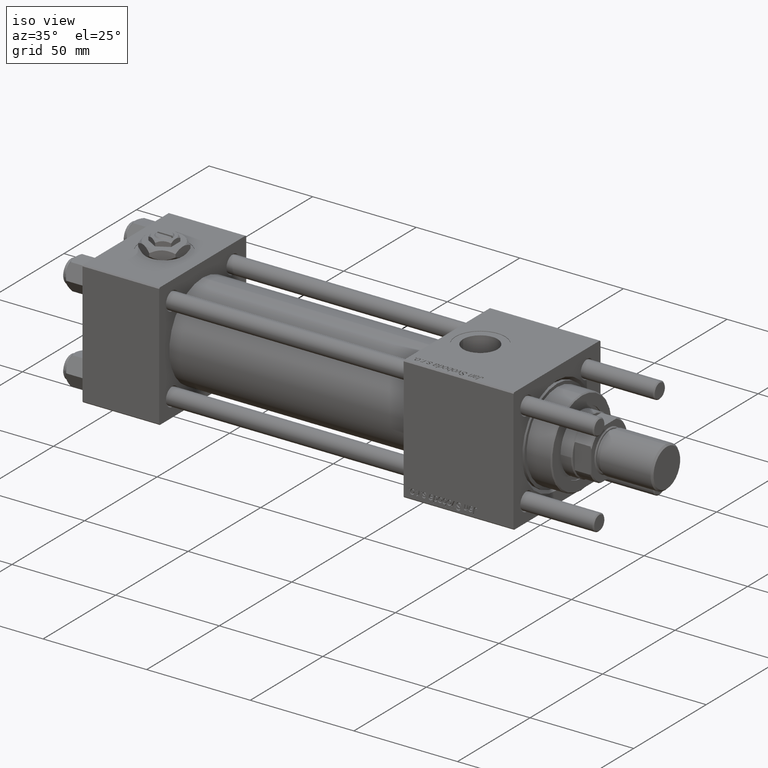
[diagram: clean part render]
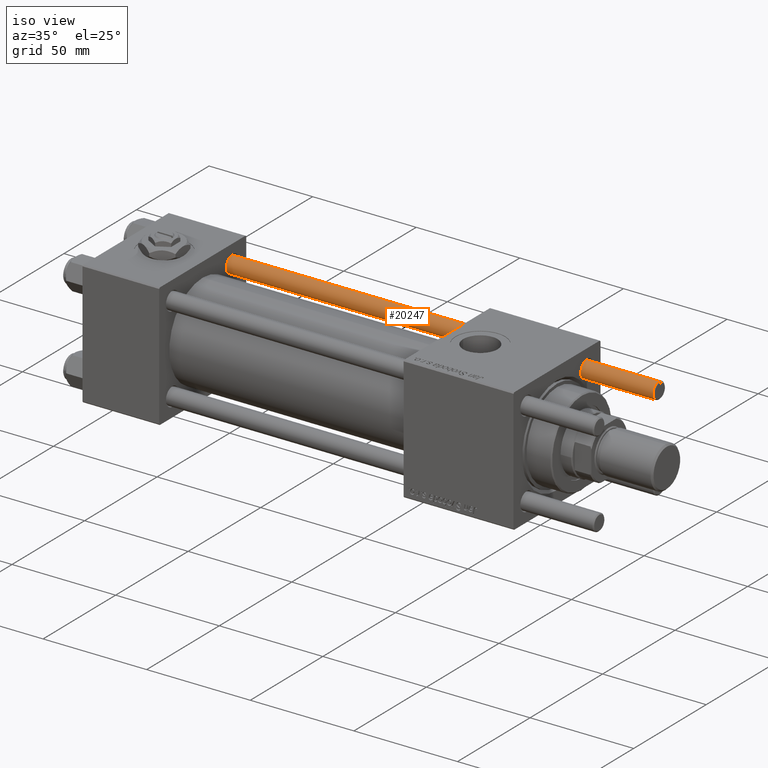
[diagram: same view with one face highlighted and labeled with its STEP entity id]
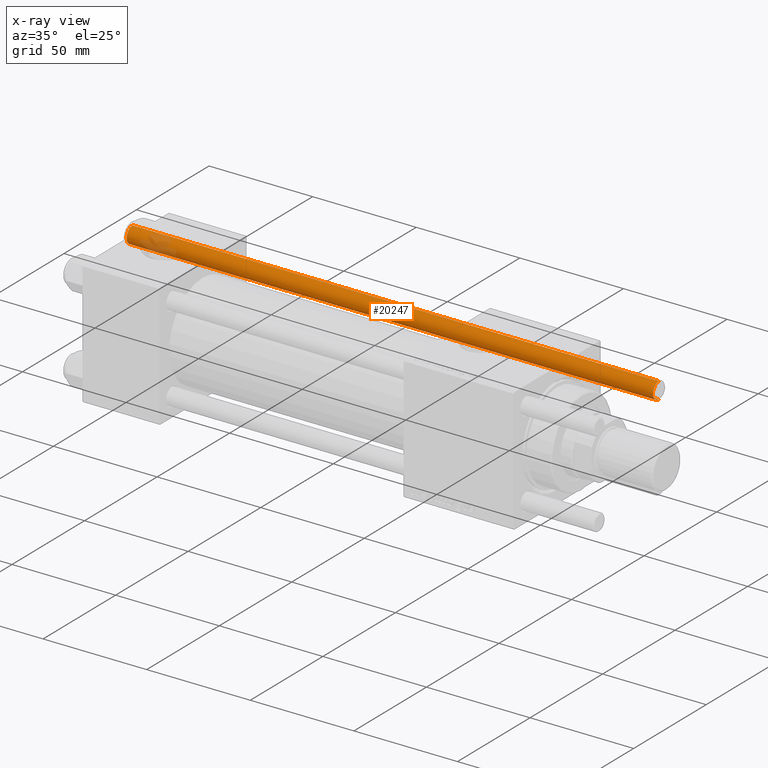
[diagram: x-ray of the same camera — body ghosted, the highlighted face saturated]
A machine part, iso view. The second image highlights one B-rep face of the part: STEP entity #20247.
The next image is the same camera in x-ray: the body ghosted, the highlighted face saturated — about 5% of this face is hidden behind the body in this view.
In plain terms, the highlighted cylindrical surface (edge-blend (fillet) strip) has radius 4 mm, axis along (1, -0, -0).
Its self-contained STEP definition (entity closure, byte-faithful):
#722 = DIRECTION ( 'NONE',  ( -1.000000000000000000, 0.000000000000000000, 0.000000000000000000 ) ) ;
#2529 = EDGE_LOOP ( 'NONE', ( #56534, #53137, #38567, #28857 ) ) ;
#4537 = CARTESIAN_POINT ( 'NONE',  ( -4.000000000000000000, 0.000000000000000000, 255.0000000000000000 ) ) ;
#4609 = CIRCLE ( 'NONE', #54421, 4.000000000000000000 ) ;
#6319 = VECTOR ( 'NONE', #16113, 1000.000000000000000 ) ;
#7406 = CARTESIAN_POINT ( 'NONE',  ( 4.000000000000000000, 4.898587196589412829E-16, 255.0000000000000000 ) ) ;
#9214 = CARTESIAN_POINT ( 'NONE',  ( 4.000000000000000000, 4.898587196589412829E-16, 254.4999999999999432 ) ) ;
#11263 = VECTOR ( 'NONE', #12960, 1000.000000000000000 ) ;
#11577 = VERTEX_POINT ( 'NONE', #47846 ) ;
#11783 = DIRECTION ( 'NONE',  ( 1.000000000000000000, 0.000000000000000000, 0.000000000000000000 ) ) ;
#12193 = LINE ( 'NONE', #7406, #6319 ) ;
#12960 = DIRECTION ( 'NONE',  ( -0.000000000000000000, -0.000000000000000000, -1.000000000000000000 ) ) ;
#14251 = CYLINDRICAL_SURFACE ( 'NONE', #22452, 4.000000000000000000 ) ;
#15428 = CARTESIAN_POINT ( 'NONE',  ( 0.000000000000000000, 0.000000000000000000, 255.0000000000000000 ) ) ;
#16113 = DIRECTION ( 'NONE',  ( -0.000000000000000000, -0.000000000000000000, -1.000000000000000000 ) ) ;
#16246 = DIRECTION ( 'NONE',  ( 1.000000000000000000, 0.000000000000000000, 0.000000000000000000 ) ) ;
#20247 = ADVANCED_FACE ( 'NONE', ( #23246 ), #14251, .T. ) ;
#21092 = DIRECTION ( 'NONE',  ( 0.000000000000000000, 0.000000000000000000, -1.000000000000000000 ) ) ;
#21848 = CIRCLE ( 'NONE', #48657, 4.000000000000000000 ) ;
#22452 = AXIS2_PLACEMENT_3D ( 'NONE', #15428, #46645, #722 ) ;
#23246 = FACE_OUTER_BOUND ( 'NONE', #2529, .T. ) ;
#28857 = ORIENTED_EDGE ( 'NONE', *, *, #34869, .T. ) ;
#29751 = CARTESIAN_POINT ( 'NONE',  ( 0.000000000000000000, 0.000000000000000000, 0.5000000000000559552 ) ) ;
#31270 = LINE ( 'NONE', #4537, #11263 ) ;
#33902 = VERTEX_POINT ( 'NONE', #9214 ) ;
#34849 = CARTESIAN_POINT ( 'NONE',  ( -4.000000000000000000, 0.000000000000000000, 0.5000000000000559552 ) ) ;
#34869 = EDGE_CURVE ( 'NONE', #34956, #50025, #21848, .T. ) ;
#34956 = VERTEX_POINT ( 'NONE', #34849 ) ;
#35024 = CARTESIAN_POINT ( 'NONE',  ( 4.000000000000000000, 4.898587196589412829E-16, 0.5000000000000559552 ) ) ;
#38491 = CARTESIAN_POINT ( 'NONE',  ( 0.000000000000000000, 0.000000000000000000, 254.4999999999999432 ) ) ;
#38567 = ORIENTED_EDGE ( 'NONE', *, *, #45183, .T. ) ;
#38744 = DIRECTION ( 'NONE',  ( -0.000000000000000000, -0.000000000000000000, 1.000000000000000000 ) ) ;
#40780 = EDGE_CURVE ( 'NONE', #33902, #50025, #12193, .T. ) ;
#45183 = EDGE_CURVE ( 'NONE', #11577, #34956, #31270, .T. ) ;
#46645 = DIRECTION ( 'NONE',  ( -0.000000000000000000, -0.000000000000000000, -1.000000000000000000 ) ) ;
#47846 = CARTESIAN_POINT ( 'NONE',  ( -4.000000000000000000, 0.000000000000000000, 254.4999999999999432 ) ) ;
#48657 = AXIS2_PLACEMENT_3D ( 'NONE', #29751, #38744, #16246 ) ;
#50025 = VERTEX_POINT ( 'NONE', #35024 ) ;
#52189 = EDGE_CURVE ( 'NONE', #33902, #11577, #4609, .T. ) ;
#53137 = ORIENTED_EDGE ( 'NONE', *, *, #52189, .T. ) ;
#54421 = AXIS2_PLACEMENT_3D ( 'NONE', #38491, #21092, #11783 ) ;
#56534 = ORIENTED_EDGE ( 'NONE', *, *, #40780, .F. ) ;